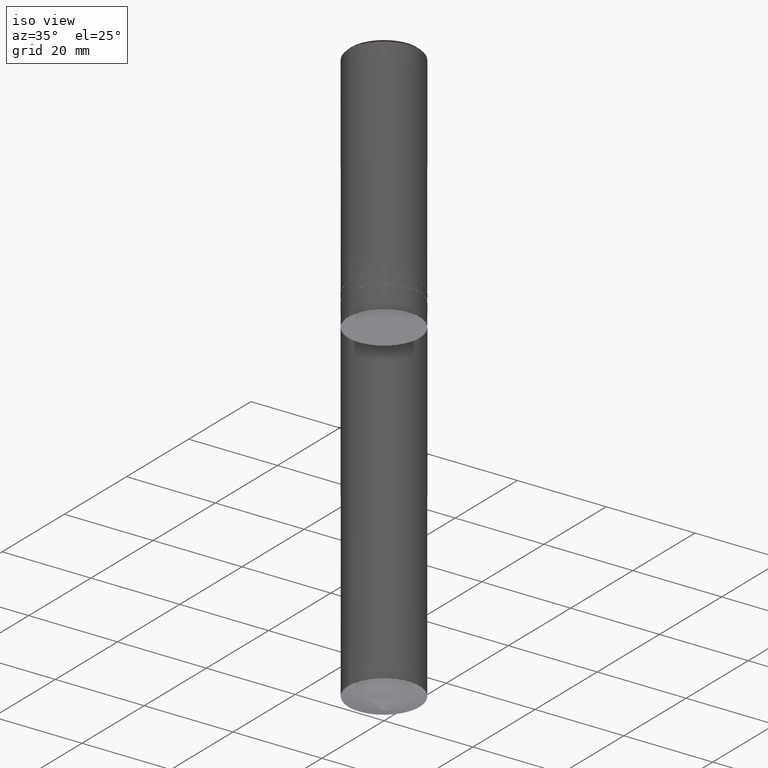
[diagram: clean part render]
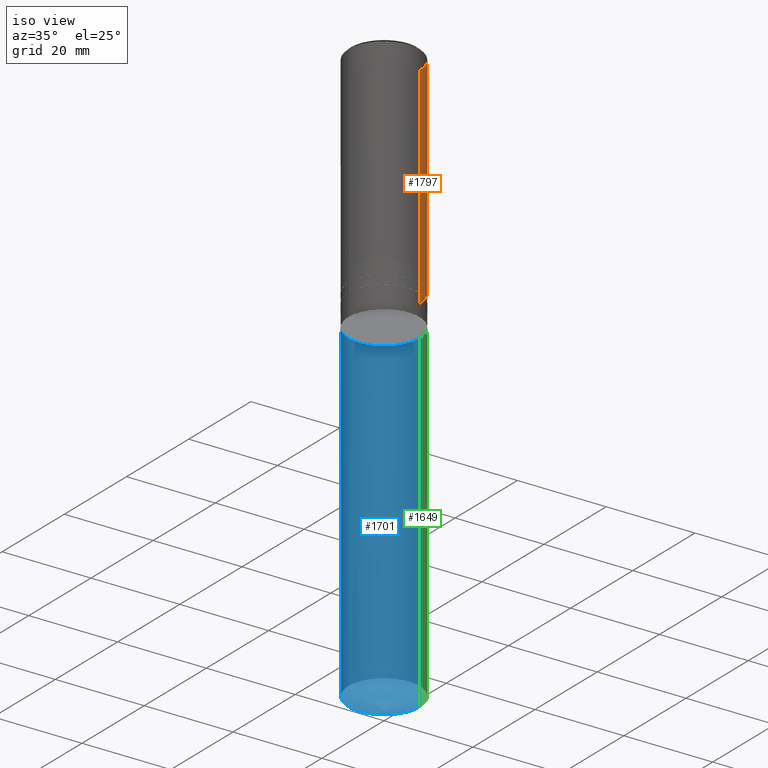
[diagram: same view with three faces highlighted in distinct colors, each labeled with its STEP entity id]
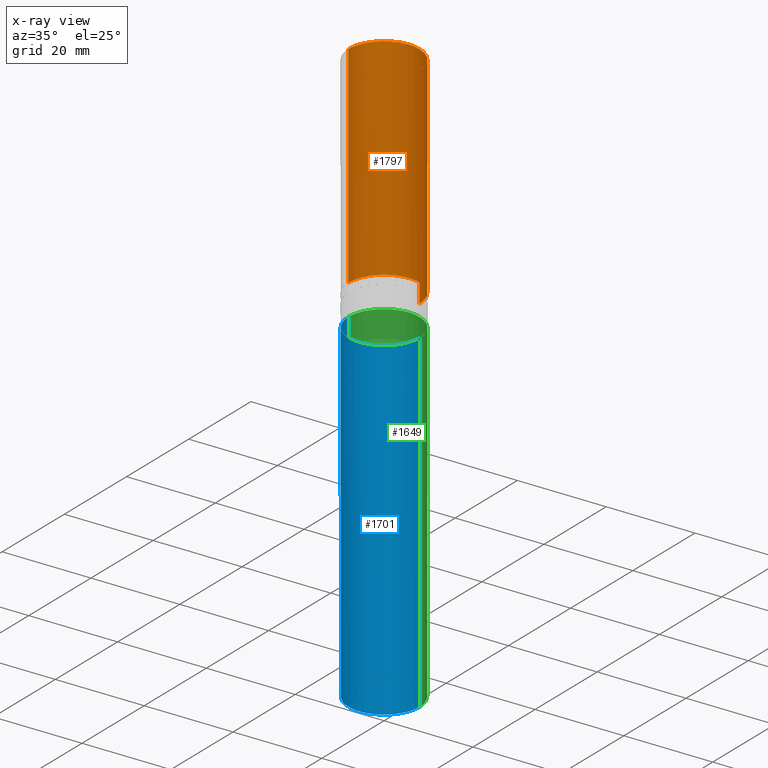
[diagram: x-ray of the same camera — body ghosted, the three highlighted faces saturated]
A machine part, iso view with three faces highlighted in distinct colors.
The next image is the same camera in x-ray (body ghosted, the three faces saturated) — at least one of them is partly hidden behind the body in this view.
Their STEP definitions:

[orange] entity #1797 — the highlighted face is a freeform B-spline surface patch.
#1581=CARTESIAN_POINT('',(8.0,0.0,0.0));
#1582=CARTESIAN_POINT('',(8.0,8.0,0.0));
#1583=CARTESIAN_POINT('',(0.0,8.0,0.0));
#1584=CARTESIAN_POINT('',(-8.0,8.0,0.0));
#1585=CARTESIAN_POINT('',(-8.0,0.0,0.0));
#1586=CARTESIAN_POINT('',(8.0,0.0,47.5));
#1587=CARTESIAN_POINT('',(8.0,8.0,47.5));
#1588=CARTESIAN_POINT('',(0.0,8.0,47.5));
#1589=CARTESIAN_POINT('',(-8.0,8.0,47.5));
#1590=CARTESIAN_POINT('',(-8.0,0.0,47.5));
#1778=(
BOUNDED_SURFACE()
B_SPLINE_SURFACE(1,2,(
(#1581,#1582,#1583,#1584,#1585),
(#1586,#1587,#1588,#1589,#1590)
), .UNSPECIFIED.,.F.,.F.,.F.)
B_SPLINE_SURFACE_WITH_KNOTS((2,2),(3,2,3),(
0.0,1.0),(
0.0,0.5,1.0), .UNSPECIFIED.)
GEOMETRIC_REPRESENTATION_ITEM()
RATIONAL_B_SPLINE_SURFACE(((1.0,0.707106781187,1.0,0.707106781187,1.0),
(1.0,0.707106781187,1.0,0.707106781187,1.0)
))
REPRESENTATION_ITEM('')
SURFACE()
);
#1779=(
BOUNDED_CURVE()
B_SPLINE_CURVE(2,(#1585,#1584,#1583,#1582,#1581),.UNSPECIFIED.,.F.,.F.)
B_SPLINE_CURVE_WITH_KNOTS((3,2,3),
(0.0,0.5,1.0),.UNSPECIFIED.)
CURVE()
GEOMETRIC_REPRESENTATION_ITEM()
RATIONAL_B_SPLINE_CURVE((1.0,0.707106781187,1.0,0.707106781187,1.0))
REPRESENTATION_ITEM('')
);
#1780=(
BOUNDED_CURVE()
B_SPLINE_CURVE(1,(#1581,#1586),.UNSPECIFIED.,.F.,.F.)
B_SPLINE_CURVE_WITH_KNOTS((2,2),
(0.0,1.0),.UNSPECIFIED.)
CURVE()
GEOMETRIC_REPRESENTATION_ITEM()
RATIONAL_B_SPLINE_CURVE((1.0,1.0))
REPRESENTATION_ITEM('')
);
#1781=(
BOUNDED_CURVE()
B_SPLINE_CURVE(2,(#1586,#1587,#1588,#1589,#1590),.UNSPECIFIED.,.F.,.F.)
B_SPLINE_CURVE_WITH_KNOTS((3,2,3),
(0.0,0.5,1.0),.UNSPECIFIED.)
CURVE()
GEOMETRIC_REPRESENTATION_ITEM()
RATIONAL_B_SPLINE_CURVE((1.0,0.707106781187,1.0,0.707106781187,1.0))
REPRESENTATION_ITEM('')
);
#1782=(
BOUNDED_CURVE()
B_SPLINE_CURVE(1,(#1590,#1585),.UNSPECIFIED.,.F.,.F.)
B_SPLINE_CURVE_WITH_KNOTS((2,2),
(0.0,1.0),.UNSPECIFIED.)
CURVE()
GEOMETRIC_REPRESENTATION_ITEM()
RATIONAL_B_SPLINE_CURVE((1.0,1.0))
REPRESENTATION_ITEM('')
);
#1783=VERTEX_POINT('',#1581);
#1784=VERTEX_POINT('',#1585);
#1785=VERTEX_POINT('',#1586);
#1786=VERTEX_POINT('',#1590);
#1787=EDGE_CURVE('',#1784,#1783,#1779,.T.);
#1788=EDGE_CURVE('',#1783,#1785,#1780,.T.);
#1789=EDGE_CURVE('',#1785,#1786,#1781,.T.);
#1790=EDGE_CURVE('',#1786,#1784,#1782,.T.);
#1791=ORIENTED_EDGE('',*,*,#1787,.T.);
#1792=ORIENTED_EDGE('',*,*,#1788,.T.);
#1793=ORIENTED_EDGE('',*,*,#1789,.T.);
#1794=ORIENTED_EDGE('',*,*,#1790,.T.);
#1795=EDGE_LOOP('',(#1791,#1792,#1793,#1794));
#1796=FACE_OUTER_BOUND('',#1795,.T.);
#1797=ADVANCED_FACE('',(#1796),#1778,.T.);

[blue] entity #1701 — the highlighted face is a freeform B-spline surface patch.
#1559=CARTESIAN_POINT('',(8.0,0.0,-82.08823812587));
#1563=CARTESIAN_POINT('',(-8.0,0.0,-82.08823812587));
#1564=CARTESIAN_POINT('',(8.0,0.0,-7.0));
#1568=CARTESIAN_POINT('',(-8.0,0.0,-7.0));
#1570=CARTESIAN_POINT('',(-8.0,-8.0,-82.08823812587));
#1571=CARTESIAN_POINT('',(0.0,-8.0,-82.08823812587));
#1572=CARTESIAN_POINT('',(8.0,-8.0,-82.08823812587));
#1573=CARTESIAN_POINT('',(-8.0,-8.0,-7.0));
#1574=CARTESIAN_POINT('',(0.0,-8.0,-7.0));
#1575=CARTESIAN_POINT('',(8.0,-8.0,-7.0));
#1682=(
BOUNDED_SURFACE()
B_SPLINE_SURFACE(1,2,(
(#1563,#1570,#1571,#1572,#1559),
(#1568,#1573,#1574,#1575,#1564)
), .UNSPECIFIED.,.F.,.F.,.F.)
B_SPLINE_SURFACE_WITH_KNOTS((2,2),(3,2,3),(
0.0,1.0),(
0.0,0.5,1.0), .UNSPECIFIED.)
GEOMETRIC_REPRESENTATION_ITEM()
RATIONAL_B_SPLINE_SURFACE(((1.0,0.707106781187,1.0,0.707106781187,1.0),
(1.0,0.707106781187,1.0,0.707106781187,1.0)
))
REPRESENTATION_ITEM('')
SURFACE()
);
#1683=(
BOUNDED_CURVE()
B_SPLINE_CURVE(2,(#1559,#1572,#1571,#1570,#1563),.UNSPECIFIED.,.F.,.F.)
B_SPLINE_CURVE_WITH_KNOTS((3,2,3),
(0.0,0.5,1.0),.UNSPECIFIED.)
CURVE()
GEOMETRIC_REPRESENTATION_ITEM()
RATIONAL_B_SPLINE_CURVE((1.0,0.707106781187,1.0,0.707106781187,1.0))
REPRESENTATION_ITEM('')
);
#1684=(
BOUNDED_CURVE()
B_SPLINE_CURVE(1,(#1563,#1568),.UNSPECIFIED.,.F.,.F.)
B_SPLINE_CURVE_WITH_KNOTS((2,2),
(0.0,1.0),.UNSPECIFIED.)
CURVE()
GEOMETRIC_REPRESENTATION_ITEM()
RATIONAL_B_SPLINE_CURVE((1.0,1.0))
REPRESENTATION_ITEM('')
);
#1685=(
BOUNDED_CURVE()
B_SPLINE_CURVE(2,(#1568,#1573,#1574,#1575,#1564),.UNSPECIFIED.,.F.,.F.)
B_SPLINE_CURVE_WITH_KNOTS((3,2,3),
(0.0,0.5,1.0),.UNSPECIFIED.)
CURVE()
GEOMETRIC_REPRESENTATION_ITEM()
RATIONAL_B_SPLINE_CURVE((1.0,0.707106781187,1.0,0.707106781187,1.0))
REPRESENTATION_ITEM('')
);
#1686=(
BOUNDED_CURVE()
B_SPLINE_CURVE(1,(#1564,#1559),.UNSPECIFIED.,.F.,.F.)
B_SPLINE_CURVE_WITH_KNOTS((2,2),
(0.0,1.0),.UNSPECIFIED.)
CURVE()
GEOMETRIC_REPRESENTATION_ITEM()
RATIONAL_B_SPLINE_CURVE((1.0,1.0))
REPRESENTATION_ITEM('')
);
#1687=VERTEX_POINT('',#1559);
#1688=VERTEX_POINT('',#1563);
#1689=VERTEX_POINT('',#1564);
#1690=VERTEX_POINT('',#1568);
#1691=EDGE_CURVE('',#1687,#1688,#1683,.T.);
#1692=EDGE_CURVE('',#1688,#1690,#1684,.T.);
#1693=EDGE_CURVE('',#1690,#1689,#1685,.T.);
#1694=EDGE_CURVE('',#1689,#1687,#1686,.T.);
#1695=ORIENTED_EDGE('',*,*,#1691,.T.);
#1696=ORIENTED_EDGE('',*,*,#1692,.T.);
#1697=ORIENTED_EDGE('',*,*,#1693,.T.);
#1698=ORIENTED_EDGE('',*,*,#1694,.T.);
#1699=EDGE_LOOP('',(#1695,#1696,#1697,#1698));
#1700=FACE_OUTER_BOUND('',#1699,.T.);
#1701=ADVANCED_FACE('',(#1700),#1682,.T.);

[green] entity #1649 — the highlighted face is a freeform B-spline surface patch.
#1559=CARTESIAN_POINT('',(8.0,0.0,-82.08823812587));
#1560=CARTESIAN_POINT('',(8.0,8.0,-82.08823812587));
#1561=CARTESIAN_POINT('',(0.0,8.0,-82.08823812587));
#1562=CARTESIAN_POINT('',(-8.0,8.0,-82.08823812587));
#1563=CARTESIAN_POINT('',(-8.0,0.0,-82.08823812587));
#1564=CARTESIAN_POINT('',(8.0,0.0,-7.0));
#1565=CARTESIAN_POINT('',(8.0,8.0,-7.0));
#1566=CARTESIAN_POINT('',(0.0,8.0,-7.0));
#1567=CARTESIAN_POINT('',(-8.0,8.0,-7.0));
#1568=CARTESIAN_POINT('',(-8.0,0.0,-7.0));
#1630=(
BOUNDED_SURFACE()
B_SPLINE_SURFACE(1,2,(
(#1559,#1560,#1561,#1562,#1563),
(#1564,#1565,#1566,#1567,#1568)
), .UNSPECIFIED.,.F.,.F.,.F.)
B_SPLINE_SURFACE_WITH_KNOTS((2,2),(3,2,3),(
0.0,1.0),(
0.0,0.5,1.0), .UNSPECIFIED.)
GEOMETRIC_REPRESENTATION_ITEM()
RATIONAL_B_SPLINE_SURFACE(((1.0,0.707106781187,1.0,0.707106781187,1.0),
(1.0,0.707106781187,1.0,0.707106781187,1.0)
))
REPRESENTATION_ITEM('')
SURFACE()
);
#1631=(
BOUNDED_CURVE()
B_SPLINE_CURVE(2,(#1563,#1562,#1561,#1560,#1559),.UNSPECIFIED.,.F.,.F.)
B_SPLINE_CURVE_WITH_KNOTS((3,2,3),
(0.0,0.5,1.0),.UNSPECIFIED.)
CURVE()
GEOMETRIC_REPRESENTATION_ITEM()
RATIONAL_B_SPLINE_CURVE((1.0,0.707106781187,1.0,0.707106781187,1.0))
REPRESENTATION_ITEM('')
);
#1632=(
BOUNDED_CURVE()
B_SPLINE_CURVE(1,(#1559,#1564),.UNSPECIFIED.,.F.,.F.)
B_SPLINE_CURVE_WITH_KNOTS((2,2),
(0.0,1.0),.UNSPECIFIED.)
CURVE()
GEOMETRIC_REPRESENTATION_ITEM()
RATIONAL_B_SPLINE_CURVE((1.0,1.0))
REPRESENTATION_ITEM('')
);
#1633=(
BOUNDED_CURVE()
B_SPLINE_CURVE(2,(#1564,#1565,#1566,#1567,#1568),.UNSPECIFIED.,.F.,.F.)
B_SPLINE_CURVE_WITH_KNOTS((3,2,3),
(0.0,0.5,1.0),.UNSPECIFIED.)
CURVE()
GEOMETRIC_REPRESENTATION_ITEM()
RATIONAL_B_SPLINE_CURVE((1.0,0.707106781187,1.0,0.707106781187,1.0))
REPRESENTATION_ITEM('')
);
#1634=(
BOUNDED_CURVE()
B_SPLINE_CURVE(1,(#1568,#1563),.UNSPECIFIED.,.F.,.F.)
B_SPLINE_CURVE_WITH_KNOTS((2,2),
(0.0,1.0),.UNSPECIFIED.)
CURVE()
GEOMETRIC_REPRESENTATION_ITEM()
RATIONAL_B_SPLINE_CURVE((1.0,1.0))
REPRESENTATION_ITEM('')
);
#1635=VERTEX_POINT('',#1559);
#1636=VERTEX_POINT('',#1563);
#1637=VERTEX_POINT('',#1564);
#1638=VERTEX_POINT('',#1568);
#1639=EDGE_CURVE('',#1636,#1635,#1631,.T.);
#1640=EDGE_CURVE('',#1635,#1637,#1632,.T.);
#1641=EDGE_CURVE('',#1637,#1638,#1633,.T.);
#1642=EDGE_CURVE('',#1638,#1636,#1634,.T.);
#1643=ORIENTED_EDGE('',*,*,#1639,.T.);
#1644=ORIENTED_EDGE('',*,*,#1640,.T.);
#1645=ORIENTED_EDGE('',*,*,#1641,.T.);
#1646=ORIENTED_EDGE('',*,*,#1642,.T.);
#1647=EDGE_LOOP('',(#1643,#1644,#1645,#1646));
#1648=FACE_OUTER_BOUND('',#1647,.T.);
#1649=ADVANCED_FACE('',(#1648),#1630,.T.);